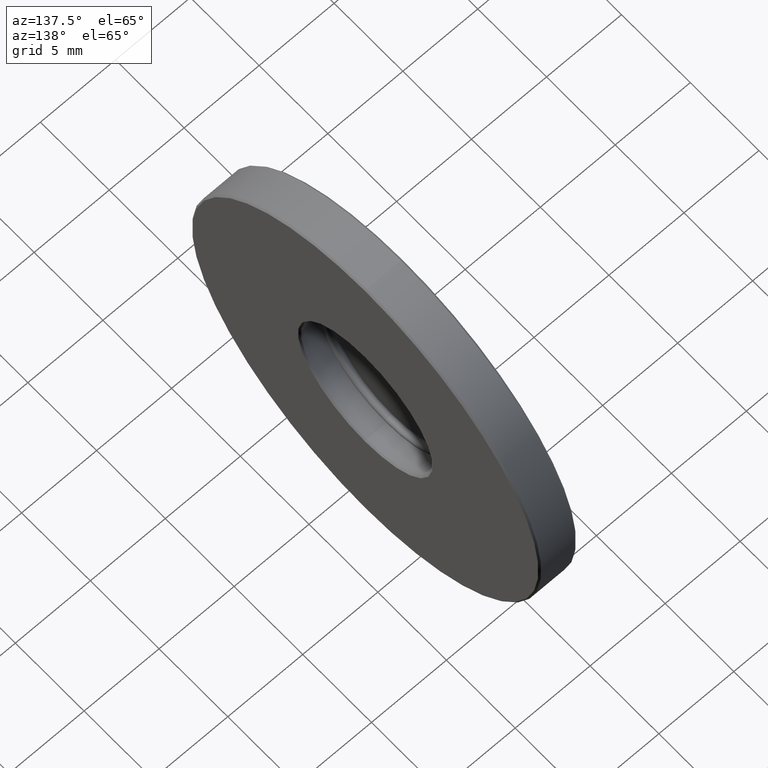
[diagram: clean part render]
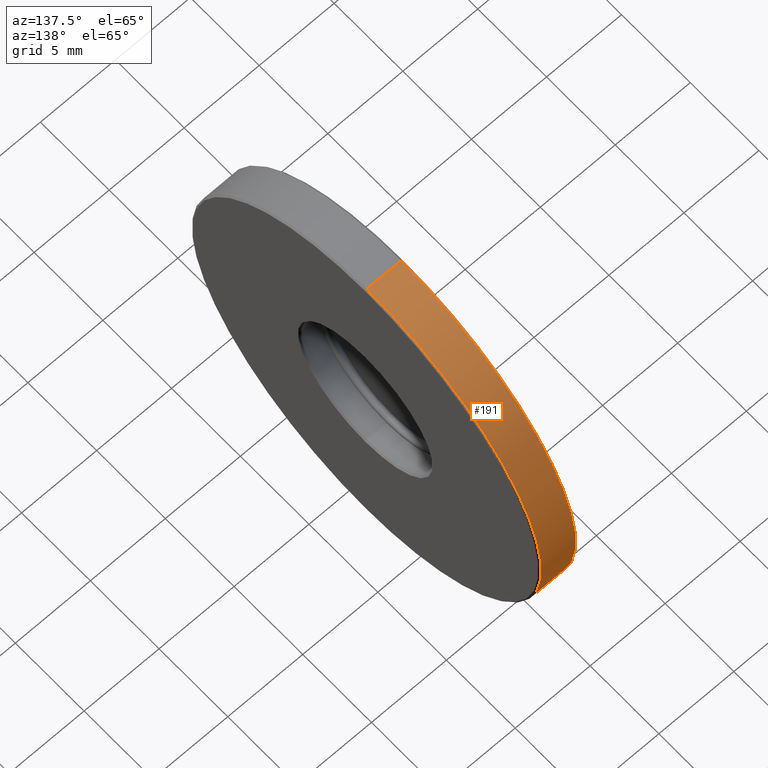
[diagram: same view with one face highlighted and labeled with its STEP entity id]
A machine part, auxiliary view. The second image highlights one B-rep face of the part: STEP entity #191.
In plain terms, the highlighted cylindrical surface (partial cylindrical patch) has radius 12.7 mm, axis along (-1, -0, -0).
Its self-contained STEP definition (entity closure, byte-faithful):
#3 = DIRECTION ( 'NONE',  ( 0.0000000000000000000, 0.0000000000000000000, -1.000000000000000000 ) ) ;
#12 = CARTESIAN_POINT ( 'NONE',  ( -2.434863851253203482, 1.436758841085141070, 38.09999999999999432 ) ) ;
#42 = VERTEX_POINT ( 'NONE', #732 ) ;
#116 = AXIS2_PLACEMENT_3D ( 'NONE', #544, #546, #742 ) ;
#130 = CARTESIAN_POINT ( 'NONE',  ( -2.534863851253199574, 1.436758841085141070, 25.39999999999999858 ) ) ;
#146 = VERTEX_POINT ( 'NONE', #299 ) ;
#171 = CIRCLE ( 'NONE', #210, 12.69999999999999929 ) ;
#175 = CYLINDRICAL_SURFACE ( 'NONE', #116, 12.69999999999999574 ) ;
#187 = VECTOR ( 'NONE', #587, 1000.000000000000000 ) ;
#191 = ADVANCED_FACE ( 'NONE', ( #805 ), #175, .T. ) ;
#210 = AXIS2_PLACEMENT_3D ( 'NONE', #637, #702, #366 ) ;
#230 = EDGE_LOOP ( 'NONE', ( #602, #765, #449, #281 ) ) ;
#281 = ORIENTED_EDGE ( 'NONE', *, *, #835, .F. ) ;
#299 = CARTESIAN_POINT ( 'NONE',  ( -2.534863851253199574, 1.436758841085141070, 38.09999999999999432 ) ) ;
#300 = LINE ( 'NONE', #834, #187 ) ;
#338 = VERTEX_POINT ( 'NONE', #370 ) ;
#366 = DIRECTION ( 'NONE',  ( 0.0000000000000000000, 0.0000000000000000000, -1.000000000000000000 ) ) ;
#370 = CARTESIAN_POINT ( 'NONE',  ( -4.834863851253204281, 1.436758841085141070, 12.69999999999999929 ) ) ;
#396 = DIRECTION ( 'NONE',  ( -1.000000000000000000, -0.0000000000000000000, -0.0000000000000000000 ) ) ;
#449 = ORIENTED_EDGE ( 'NONE', *, *, #651, .T. ) ;
#476 = LINE ( 'NONE', #12, #542 ) ;
#492 = VERTEX_POINT ( 'NONE', #500 ) ;
#500 = CARTESIAN_POINT ( 'NONE',  ( -4.834863851253204281, 1.436758841085142402, 38.09999999999999432 ) ) ;
#527 = AXIS2_PLACEMENT_3D ( 'NONE', #130, #578, #3 ) ;
#542 = VECTOR ( 'NONE', #396, 1000.000000000000000 ) ;
#544 = CARTESIAN_POINT ( 'NONE',  ( -2.434863851253203482, 1.436758841085141070, 25.39999999999999858 ) ) ;
#546 = DIRECTION ( 'NONE',  ( -1.000000000000000000, -0.0000000000000000000, -0.0000000000000000000 ) ) ;
#578 = DIRECTION ( 'NONE',  ( -1.000000000000000000, 0.0000000000000000000, 0.0000000000000000000 ) ) ;
#587 = DIRECTION ( 'NONE',  ( -1.000000000000000000, -0.0000000000000000000, -0.0000000000000000000 ) ) ;
#602 = ORIENTED_EDGE ( 'NONE', *, *, #793, .T. ) ;
#615 = CIRCLE ( 'NONE', #527, 12.69999999999999929 ) ;
#637 = CARTESIAN_POINT ( 'NONE',  ( -4.834863851253204281, 1.436758841085141070, 25.39999999999999858 ) ) ;
#651 = EDGE_CURVE ( 'NONE', #338, #492, #171, .T. ) ;
#702 = DIRECTION ( 'NONE',  ( 1.000000000000000000, -0.0000000000000000000, -0.0000000000000000000 ) ) ;
#732 = CARTESIAN_POINT ( 'NONE',  ( -2.534863851253199574, 1.436758841085142402, 12.69999999999999929 ) ) ;
#742 = DIRECTION ( 'NONE',  ( 0.0000000000000000000, 0.0000000000000000000, 1.000000000000000000 ) ) ;
#765 = ORIENTED_EDGE ( 'NONE', *, *, #776, .T. ) ;
#776 = EDGE_CURVE ( 'NONE', #42, #338, #300, .T. ) ;
#793 = EDGE_CURVE ( 'NONE', #146, #42, #615, .T. ) ;
#805 = FACE_OUTER_BOUND ( 'NONE', #230, .T. ) ;
#834 = CARTESIAN_POINT ( 'NONE',  ( -2.434863851253203482, 1.436758841085142402, 12.69999999999999929 ) ) ;
#835 = EDGE_CURVE ( 'NONE', #146, #492, #476, .T. ) ;